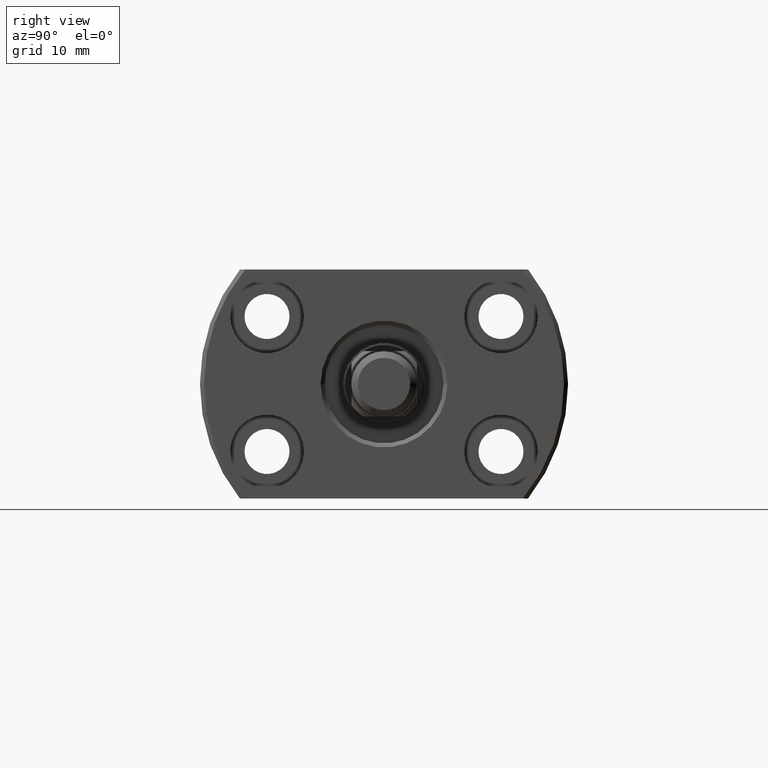
[diagram: clean part render]
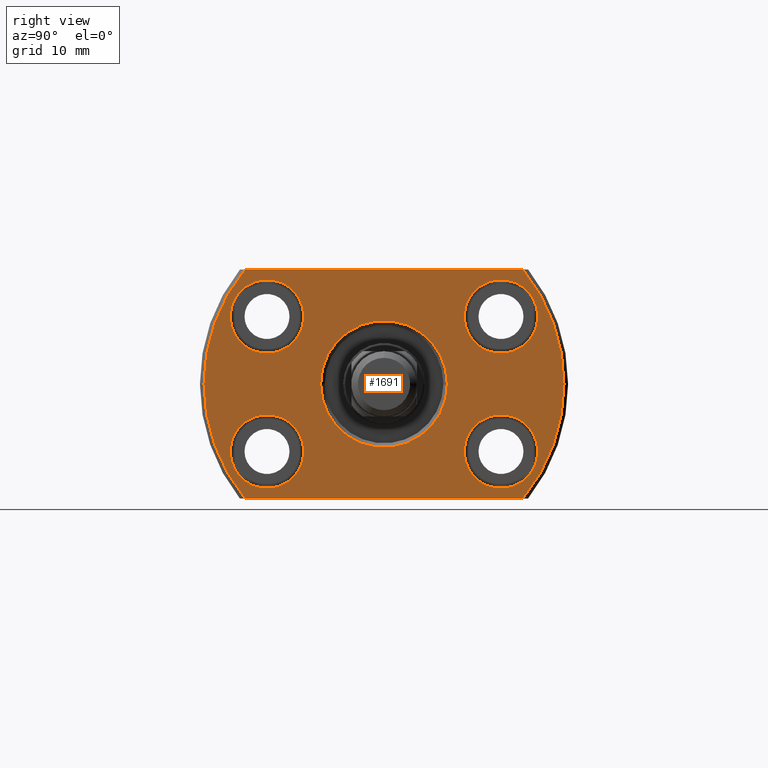
[diagram: same view with one face highlighted and labeled with its STEP entity id]
A machine part, right view. The second image highlights one B-rep face of the part: STEP entity #1691.
In plain terms, the highlighted planar face has unit normal (-1, -0, 0).
Its self-contained STEP definition (entity closure, byte-faithful):
#19 = VERTEX_POINT ( 'NONE', #2838 ) ;
#22 = DIRECTION ( 'NONE',  ( 2.852656382717286247E-14, 1.000000000000000000, 0.000000000000000000 ) ) ;
#26 = DIRECTION ( 'NONE',  ( 1.000000000000000000, -2.886466111666351885E-14, 0.000000000000000000 ) ) ;
#56 = AXIS2_PLACEMENT_3D ( 'NONE', #2123, #3534, #3497 ) ;
#60 = CARTESIAN_POINT ( 'NONE',  ( 24.50000000000041211, 14.29999999999929194, 8.250000000000000000 ) ) ;
#66 = AXIS2_PLACEMENT_3D ( 'NONE', #2402, #2727, #1586 ) ;
#97 = ORIENTED_EDGE ( 'NONE', *, *, #407, .T. ) ;
#98 = CARTESIAN_POINT ( 'NONE',  ( 24.49999999999945999, -18.80000000000091376, 8.250000000000000000 ) ) ;
#111 = AXIS2_PLACEMENT_3D ( 'NONE', #924, #1200, #396 ) ;
#121 = CIRCLE ( 'NONE', #2472, 4.500000000000205169 ) ;
#173 = DIRECTION ( 'NONE',  ( 0.000000000000000000, 1.000000000000000000, 0.000000000000000000 ) ) ;
#180 = CIRCLE ( 'NONE', #768, 4.500000000000205169 ) ;
#185 = EDGE_LOOP ( 'NONE', ( #669, #665 ) ) ;
#193 = FACE_BOUND ( 'NONE', #2533, .T. ) ;
#226 = CIRCLE ( 'NONE', #111, 22.00000000000000000 ) ;
#246 = VERTEX_POINT ( 'NONE', #1947 ) ;
#271 = ORIENTED_EDGE ( 'NONE', *, *, #2146, .T. ) ;
#288 = VERTEX_POINT ( 'NONE', #3237 ) ;
#310 = DIRECTION ( 'NONE',  ( 1.000000000000000000, -2.889258529047467066E-14, 0.000000000000000000 ) ) ;
#332 = DIRECTION ( 'NONE',  ( -4.998558363877804092E-19, 1.000000000000000000, -0.000000000000000000 ) ) ;
#360 = CARTESIAN_POINT ( 'NONE',  ( 24.50000000000028422, 9.799999999999087663, -8.250000000000000000 ) ) ;
#361 = CARTESIAN_POINT ( 'NONE',  ( 24.49999999999971578, -9.800000000000503420, 8.250000000000000000 ) ) ;
#373 = ORIENTED_EDGE ( 'NONE', *, *, #1922, .F. ) ;
#396 = DIRECTION ( 'NONE',  ( 0.000000000000000000, 1.000000000000000000, 0.000000000000000000 ) ) ;
#407 = EDGE_CURVE ( 'NONE', #3255, #2241, #226, .T. ) ;
#460 = VERTEX_POINT ( 'NONE', #98 ) ;
#495 = VERTEX_POINT ( 'NONE', #3619 ) ;
#505 = ORIENTED_EDGE ( 'NONE', *, *, #3231, .T. ) ;
#665 = ORIENTED_EDGE ( 'NONE', *, *, #859, .F. ) ;
#669 = ORIENTED_EDGE ( 'NONE', *, *, #722, .F. ) ;
#707 = ORIENTED_EDGE ( 'NONE', *, *, #717, .T. ) ;
#710 = CARTESIAN_POINT ( 'NONE',  ( 24.50000000000000000, 16.97056274847713553, 14.00000000000000355 ) ) ;
#714 = VECTOR ( 'NONE', #3548, 1000.000000000000000 ) ;
#717 = EDGE_CURVE ( 'NONE', #1814, #1521, #2105, .T. ) ;
#722 = EDGE_CURVE ( 'NONE', #19, #3597, #1868, .T. ) ;
#747 = CARTESIAN_POINT ( 'NONE',  ( 24.49999999999958789, -14.30000000000070770, -8.250000000000000000 ) ) ;
#758 = ORIENTED_EDGE ( 'NONE', *, *, #1591, .F. ) ;
#768 = AXIS2_PLACEMENT_3D ( 'NONE', #3553, #2642, #2967 ) ;
#790 = CARTESIAN_POINT ( 'NONE',  ( 24.50000000000000000, -16.97056274847713553, -14.00000000000000355 ) ) ;
#859 = EDGE_CURVE ( 'NONE', #3597, #19, #3311, .T. ) ;
#883 = CIRCLE ( 'NONE', #1067, 4.500000000000205169 ) ;
#915 = VERTEX_POINT ( 'NONE', #1500 ) ;
#924 = CARTESIAN_POINT ( 'NONE',  ( 24.50000000000000000, 1.224646799150062051E-17, 0.000000000000000000 ) ) ;
#1004 = AXIS2_PLACEMENT_3D ( 'NONE', #1319, #2176, #1092 ) ;
#1041 = ORIENTED_EDGE ( 'NONE', *, *, #3082, .F. ) ;
#1067 = AXIS2_PLACEMENT_3D ( 'NONE', #1426, #3184, #22 ) ;
#1088 = DIRECTION ( 'NONE',  ( 0.000000000000000000, -1.000000000000000000, 0.000000000000000000 ) ) ;
#1092 = DIRECTION ( 'NONE',  ( 4.998558363877804092E-19, -1.000000000000000000, 0.000000000000000000 ) ) ;
#1109 = DIRECTION ( 'NONE',  ( 1.000000000000000000, -2.889258529047467066E-14, 0.000000000000000000 ) ) ;
#1115 = AXIS2_PLACEMENT_3D ( 'NONE', #1651, #1109, #3607 ) ;
#1200 = DIRECTION ( 'NONE',  ( 1.000000000000000000, 4.998558363877804092E-19, -0.000000000000000000 ) ) ;
#1273 = DIRECTION ( 'NONE',  ( 1.000000000000000000, -2.889258529047467066E-14, 0.000000000000000000 ) ) ;
#1301 = DIRECTION ( 'NONE',  ( 1.000000000000000000, 4.998558363877804092E-19, -0.000000000000000000 ) ) ;
#1319 = CARTESIAN_POINT ( 'NONE',  ( 24.50000000000000000, -22.00000000000000000, 0.000000000000000000 ) ) ;
#1374 = CARTESIAN_POINT ( 'NONE',  ( 24.50000000000000000, -7.071841973582562623E-13, 0.000000000000000000 ) ) ;
#1420 = EDGE_CURVE ( 'NONE', #1962, #3059, #121, .T. ) ;
#1426 = CARTESIAN_POINT ( 'NONE',  ( 24.49999999999958789, -14.30000000000070770, 8.250000000000000000 ) ) ;
#1443 = ORIENTED_EDGE ( 'NONE', *, *, #3459, .F. ) ;
#1459 = ORIENTED_EDGE ( 'NONE', *, *, #2493, .T. ) ;
#1497 = EDGE_CURVE ( 'NONE', #2700, #460, #180, .T. ) ;
#1500 = CARTESIAN_POINT ( 'NONE',  ( 24.50000000000000000, 7.749999999998841815, 0.000000000000000000 ) ) ;
#1521 = VERTEX_POINT ( 'NONE', #710 ) ;
#1563 = EDGE_CURVE ( 'NONE', #2658, #3255, #2766, .T. ) ;
#1586 = DIRECTION ( 'NONE',  ( 0.000000000000000000, -1.000000000000000000, 0.000000000000000000 ) ) ;
#1591 = EDGE_CURVE ( 'NONE', #288, #246, #3012, .T. ) ;
#1621 = EDGE_CURVE ( 'NONE', #3059, #1962, #3195, .T. ) ;
#1631 = FACE_OUTER_BOUND ( 'NONE', #3568, .T. ) ;
#1651 = CARTESIAN_POINT ( 'NONE',  ( 24.49999999999958789, -14.30000000000070770, -8.250000000000000000 ) ) ;
#1658 = DIRECTION ( 'NONE',  ( 0.000000000000000000, 1.000000000000000000, 0.000000000000000000 ) ) ;
#1661 = FACE_BOUND ( 'NONE', #2252, .T. ) ;
#1664 = DIRECTION ( 'NONE',  ( 2.852656382717286247E-14, 1.000000000000000000, 0.000000000000000000 ) ) ;
#1691 = ADVANCED_FACE ( 'NONE', ( #1661, #3649, #3342, #193, #2473, #1631 ), #3591, .F. ) ;
#1698 = CARTESIAN_POINT ( 'NONE',  ( 24.50000000000000000, 1.224646799150062051E-17, 0.000000000000000000 ) ) ;
#1766 = EDGE_LOOP ( 'NONE', ( #2373, #2162 ) ) ;
#1814 = VERTEX_POINT ( 'NONE', #2570 ) ;
#1844 = DIRECTION ( 'NONE',  ( 2.852656382717284985E-14, 1.000000000000000000, 0.000000000000000000 ) ) ;
#1868 = CIRCLE ( 'NONE', #3491, 4.500000000000205169 ) ;
#1922 = EDGE_CURVE ( 'NONE', #460, #2700, #883, .T. ) ;
#1938 = CIRCLE ( 'NONE', #3139, 7.749999999999547029 ) ;
#1947 = CARTESIAN_POINT ( 'NONE',  ( 24.49999999999971578, -9.800000000000501643, -8.250000000000000000 ) ) ;
#1962 = VERTEX_POINT ( 'NONE', #3488 ) ;
#2034 = ORIENTED_EDGE ( 'NONE', *, *, #1563, .T. ) ;
#2094 = LINE ( 'NONE', #2393, #714 ) ;
#2105 = CIRCLE ( 'NONE', #2877, 22.00000000000000000 ) ;
#2112 = CARTESIAN_POINT ( 'NONE',  ( 24.50000000000041211, 14.29999999999929194, -8.250000000000000000 ) ) ;
#2123 = CARTESIAN_POINT ( 'NONE',  ( 24.50000000000041211, 14.29999999999929194, 8.250000000000000000 ) ) ;
#2146 = EDGE_CURVE ( 'NONE', #915, #495, #1938, .T. ) ;
#2162 = ORIENTED_EDGE ( 'NONE', *, *, #1621, .F. ) ;
#2176 = DIRECTION ( 'NONE',  ( -1.000000000000000000, -4.998558363877804092E-19, 0.000000000000000000 ) ) ;
#2195 = CARTESIAN_POINT ( 'NONE',  ( 24.50000000000000000, -16.97056274847713553, 14.00000000000000355 ) ) ;
#2216 = DIRECTION ( 'NONE',  ( -1.000000000000000000, -4.998558363877804092E-19, 0.000000000000000000 ) ) ;
#2241 = VERTEX_POINT ( 'NONE', #790 ) ;
#2252 = EDGE_LOOP ( 'NONE', ( #271, #1459 ) ) ;
#2355 = VECTOR ( 'NONE', #332, 1000.000000000000000 ) ;
#2361 = CIRCLE ( 'NONE', #66, 7.749999999999547029 ) ;
#2373 = ORIENTED_EDGE ( 'NONE', *, *, #1420, .F. ) ;
#2393 = CARTESIAN_POINT ( 'NONE',  ( 24.50000000000000000, 17.61391495380915018, 14.00000000000000355 ) ) ;
#2402 = CARTESIAN_POINT ( 'NONE',  ( 24.50000000000000000, -7.071841973582562623E-13, 0.000000000000000000 ) ) ;
#2472 = AXIS2_PLACEMENT_3D ( 'NONE', #60, #26, #1664 ) ;
#2473 = FACE_BOUND ( 'NONE', #185, .T. ) ;
#2493 = EDGE_CURVE ( 'NONE', #495, #915, #2361, .T. ) ;
#2533 = EDGE_LOOP ( 'NONE', ( #1041, #758 ) ) ;
#2552 = LINE ( 'NONE', #3125, #2355 ) ;
#2570 = CARTESIAN_POINT ( 'NONE',  ( 24.50000000000000000, 16.97056274847713553, -14.00000000000000355 ) ) ;
#2572 = AXIS2_PLACEMENT_3D ( 'NONE', #2112, #1273, #3263 ) ;
#2642 = DIRECTION ( 'NONE',  ( 1.000000000000000000, -2.889258529047467066E-14, 0.000000000000000000 ) ) ;
#2658 = VERTEX_POINT ( 'NONE', #2195 ) ;
#2669 = CARTESIAN_POINT ( 'NONE',  ( 24.50000000000000000, 1.224646799150062051E-17, 0.000000000000000000 ) ) ;
#2700 = VERTEX_POINT ( 'NONE', #361 ) ;
#2723 = EDGE_LOOP ( 'NONE', ( #3324, #373 ) ) ;
#2727 = DIRECTION ( 'NONE',  ( -1.000000000000000000, -4.998558363877804092E-19, 0.000000000000000000 ) ) ;
#2766 = CIRCLE ( 'NONE', #3073, 22.00000000000000000 ) ;
#2837 = DIRECTION ( 'NONE',  ( 1.000000000000000000, 4.998558363877804092E-19, -0.000000000000000000 ) ) ;
#2838 = CARTESIAN_POINT ( 'NONE',  ( 24.50000000000054357, 18.79999999999949623, -8.250000000000000000 ) ) ;
#2877 = AXIS2_PLACEMENT_3D ( 'NONE', #1698, #2837, #1658 ) ;
#2885 = AXIS2_PLACEMENT_3D ( 'NONE', #747, #3288, #1844 ) ;
#2967 = DIRECTION ( 'NONE',  ( 2.852656382717286247E-14, 1.000000000000000000, 0.000000000000000000 ) ) ;
#3012 = CIRCLE ( 'NONE', #2885, 4.500000000000206946 ) ;
#3026 = CARTESIAN_POINT ( 'NONE',  ( 24.50000000000028422, 9.799999999999087663, 8.250000000000000000 ) ) ;
#3059 = VERTEX_POINT ( 'NONE', #3026 ) ;
#3073 = AXIS2_PLACEMENT_3D ( 'NONE', #2669, #1301, #173 ) ;
#3082 = EDGE_CURVE ( 'NONE', #246, #288, #3128, .T. ) ;
#3125 = CARTESIAN_POINT ( 'NONE',  ( 24.50000000000000000, -22.00000000000000000, -14.00000000000000355 ) ) ;
#3128 = CIRCLE ( 'NONE', #1115, 4.500000000000206946 ) ;
#3139 = AXIS2_PLACEMENT_3D ( 'NONE', #1374, #2216, #1088 ) ;
#3184 = DIRECTION ( 'NONE',  ( 1.000000000000000000, -2.889258529047467066E-14, 0.000000000000000000 ) ) ;
#3195 = CIRCLE ( 'NONE', #56, 4.500000000000205169 ) ;
#3231 = EDGE_CURVE ( 'NONE', #2241, #1814, #2552, .T. ) ;
#3237 = CARTESIAN_POINT ( 'NONE',  ( 24.49999999999945999, -18.80000000000091376, -8.250000000000000000 ) ) ;
#3255 = VERTEX_POINT ( 'NONE', #3471 ) ;
#3263 = DIRECTION ( 'NONE',  ( 2.852656382717286247E-14, 1.000000000000000000, 0.000000000000000000 ) ) ;
#3288 = DIRECTION ( 'NONE',  ( 1.000000000000000000, -2.889258529047467066E-14, 0.000000000000000000 ) ) ;
#3311 = CIRCLE ( 'NONE', #2572, 4.500000000000205169 ) ;
#3324 = ORIENTED_EDGE ( 'NONE', *, *, #1497, .F. ) ;
#3342 = FACE_BOUND ( 'NONE', #2723, .T. ) ;
#3371 = DIRECTION ( 'NONE',  ( 2.852656382717286247E-14, 1.000000000000000000, 0.000000000000000000 ) ) ;
#3401 = CARTESIAN_POINT ( 'NONE',  ( 24.50000000000041211, 14.29999999999929194, -8.250000000000000000 ) ) ;
#3459 = EDGE_CURVE ( 'NONE', #2658, #1521, #2094, .T. ) ;
#3471 = CARTESIAN_POINT ( 'NONE',  ( 24.50000000000000000, -22.00000000000000000, 0.000000000000000000 ) ) ;
#3488 = CARTESIAN_POINT ( 'NONE',  ( 24.50000000000054357, 18.79999999999949623, 8.250000000000000000 ) ) ;
#3491 = AXIS2_PLACEMENT_3D ( 'NONE', #3401, #310, #3371 ) ;
#3497 = DIRECTION ( 'NONE',  ( 2.852656382717286247E-14, 1.000000000000000000, 0.000000000000000000 ) ) ;
#3534 = DIRECTION ( 'NONE',  ( 1.000000000000000000, -2.886466111666351885E-14, 0.000000000000000000 ) ) ;
#3548 = DIRECTION ( 'NONE',  ( -0.000000000000000000, 1.000000000000000000, 0.000000000000000000 ) ) ;
#3553 = CARTESIAN_POINT ( 'NONE',  ( 24.49999999999958789, -14.30000000000070770, 8.250000000000000000 ) ) ;
#3568 = EDGE_LOOP ( 'NONE', ( #1443, #2034, #97, #505, #707 ) ) ;
#3591 = PLANE ( 'NONE',  #1004 ) ;
#3597 = VERTEX_POINT ( 'NONE', #360 ) ;
#3607 = DIRECTION ( 'NONE',  ( 2.852656382717284985E-14, 1.000000000000000000, 0.000000000000000000 ) ) ;
#3619 = CARTESIAN_POINT ( 'NONE',  ( 24.50000000000000000, -7.750000000000701661, 9.491012693391979898E-16 ) ) ;
#3649 = FACE_BOUND ( 'NONE', #1766, .T. ) ;